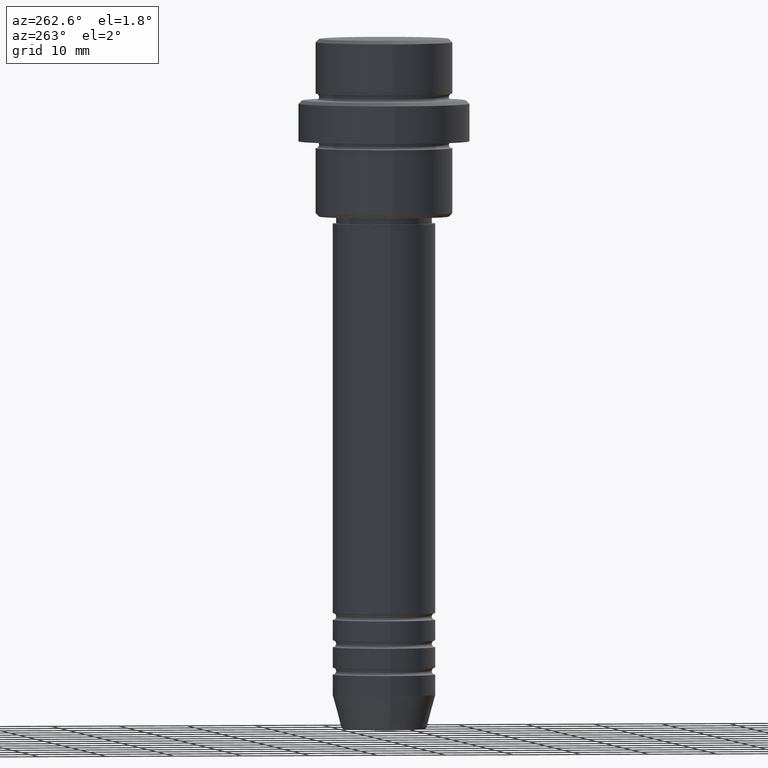
[diagram: clean part render]
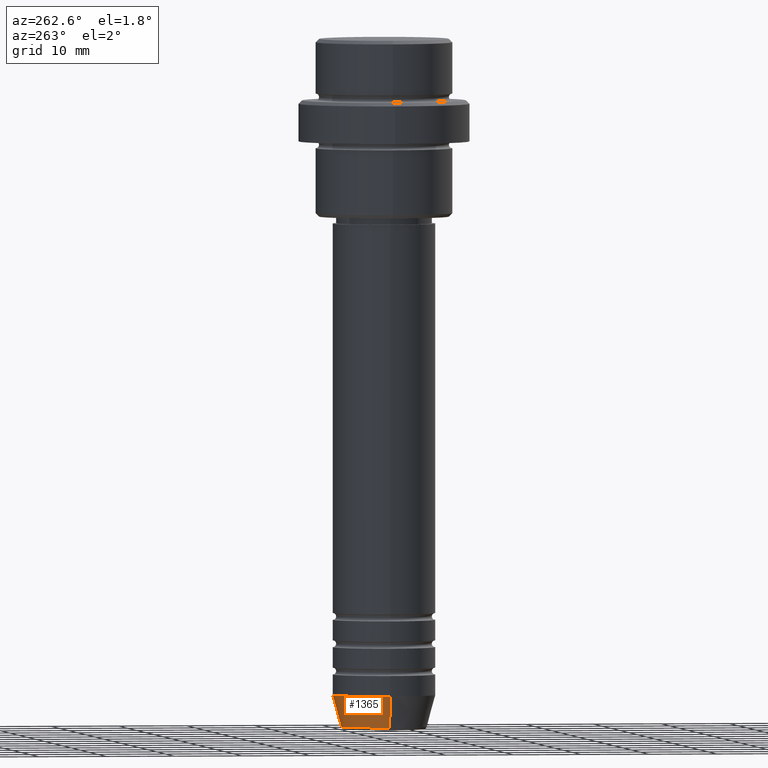
[diagram: same view with one face highlighted and labeled with its STEP entity id]
A machine part, auxiliary view. The second image highlights one B-rep face of the part: STEP entity #1365.
In plain terms, the highlighted conical surface has half-angle 15 deg.
Its self-contained STEP definition (entity closure, byte-faithful):
#3 = AXIS2_PLACEMENT_3D ( 'NONE', #586, #1019, #161 ) ;
#161 = DIRECTION ( 'NONE',  ( 1.000000000000000000, 0.000000000000000000, 0.000000000000000000 ) ) ;
#197 = VERTEX_POINT ( 'NONE', #839 ) ;
#230 = DIRECTION ( 'NONE',  ( -0.2588190451025213501, 3.169619151431772337E-17, 0.9659258262890680902 ) ) ;
#242 = EDGE_CURVE ( 'NONE', #1056, #650, #859, .T. ) ;
#273 = VERTEX_POINT ( 'NONE', #635 ) ;
#284 = CONICAL_SURFACE ( 'NONE', #1185, 7.500000000000000000, 0.2617993877991500740 ) ;
#316 = DIRECTION ( 'NONE',  ( 0.2588190451025213501, 0.000000000000000000, 0.9659258262890680902 ) ) ;
#353 = ORIENTED_EDGE ( 'NONE', *, *, #1010, .F. ) ;
#530 = LINE ( 'NONE', #553, #1301 ) ;
#553 = CARTESIAN_POINT ( 'NONE',  ( -7.500000000000000000, 9.184850993605147944E-16, -96.00000000000000000 ) ) ;
#586 = CARTESIAN_POINT ( 'NONE',  ( 0.000000000000000000, 0.000000000000000000, -96.00000000000000000 ) ) ;
#619 = CIRCLE ( 'NONE', #3, 7.500000000000000000 ) ;
#635 = CARTESIAN_POINT ( 'NONE',  ( -6.259553456999439547, 8.425296549405630472E-16, -100.6294095225512706 ) ) ;
#650 = VERTEX_POINT ( 'NONE', #937 ) ;
#684 = EDGE_CURVE ( 'NONE', #1056, #273, #934, .T. ) ;
#696 = FACE_OUTER_BOUND ( 'NONE', #1106, .T. ) ;
#723 = DIRECTION ( 'NONE',  ( -0.000000000000000000, -0.000000000000000000, 1.000000000000000000 ) ) ;
#741 = ORIENTED_EDGE ( 'NONE', *, *, #684, .T. ) ;
#747 = EDGE_CURVE ( 'NONE', #273, #197, #530, .T. ) ;
#834 = DIRECTION ( 'NONE',  ( 1.000000000000000000, 0.000000000000000000, 0.000000000000000000 ) ) ;
#839 = CARTESIAN_POINT ( 'NONE',  ( -7.500000000000000000, 9.184850993605147944E-16, -96.00000000000000000 ) ) ;
#856 = ORIENTED_EDGE ( 'NONE', *, *, #747, .T. ) ;
#858 = CARTESIAN_POINT ( 'NONE',  ( 0.000000000000000000, 0.000000000000000000, -100.6294095225512706 ) ) ;
#859 = LINE ( 'NONE', #944, #931 ) ;
#931 = VECTOR ( 'NONE', #316, 1000.000000000000000 ) ;
#934 = CIRCLE ( 'NONE', #1231, 6.259553456999438659 ) ;
#937 = CARTESIAN_POINT ( 'NONE',  ( 7.500000000000000000, 0.000000000000000000, -96.00000000000000000 ) ) ;
#944 = CARTESIAN_POINT ( 'NONE',  ( 7.500000000000000000, 0.000000000000000000, -96.00000000000000000 ) ) ;
#1010 = EDGE_CURVE ( 'NONE', #650, #197, #619, .T. ) ;
#1017 = DIRECTION ( 'NONE',  ( 1.000000000000000000, 0.000000000000000000, 0.000000000000000000 ) ) ;
#1019 = DIRECTION ( 'NONE',  ( -0.000000000000000000, -0.000000000000000000, 1.000000000000000000 ) ) ;
#1056 = VERTEX_POINT ( 'NONE', #1307 ) ;
#1106 = EDGE_LOOP ( 'NONE', ( #741, #856, #353, #1171 ) ) ;
#1171 = ORIENTED_EDGE ( 'NONE', *, *, #242, .F. ) ;
#1185 = AXIS2_PLACEMENT_3D ( 'NONE', #1354, #1242, #1017 ) ;
#1231 = AXIS2_PLACEMENT_3D ( 'NONE', #858, #723, #834 ) ;
#1242 = DIRECTION ( 'NONE',  ( -0.000000000000000000, -0.000000000000000000, 1.000000000000000000 ) ) ;
#1301 = VECTOR ( 'NONE', #230, 1000.000000000000000 ) ;
#1307 = CARTESIAN_POINT ( 'NONE',  ( 6.259553456999438659, 0.000000000000000000, -100.6294095225512706 ) ) ;
#1354 = CARTESIAN_POINT ( 'NONE',  ( 0.000000000000000000, 0.000000000000000000, -96.00000000000000000 ) ) ;
#1365 = ADVANCED_FACE ( 'NONE', ( #696 ), #284, .T. ) ;